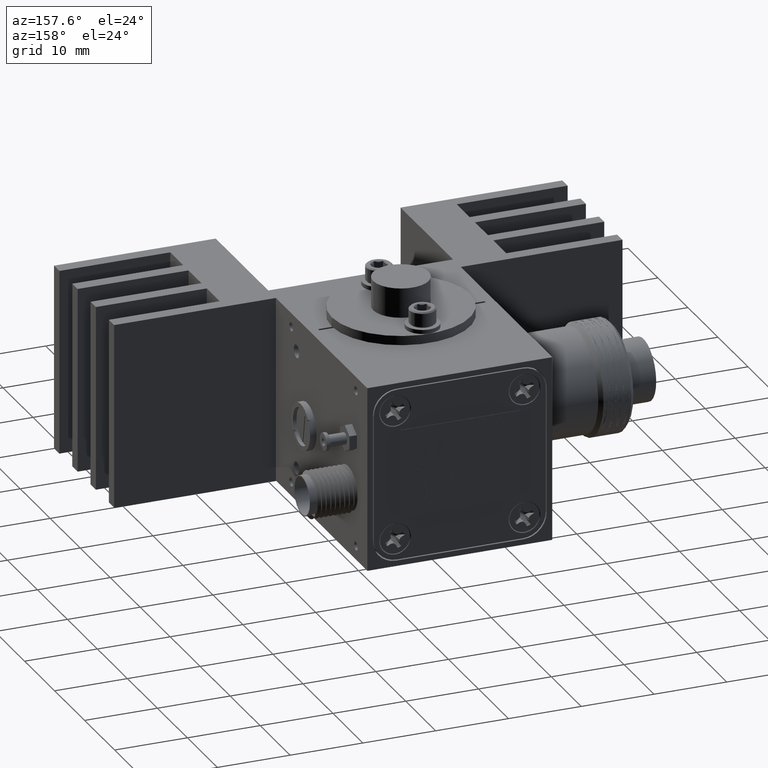
[diagram: clean part render]
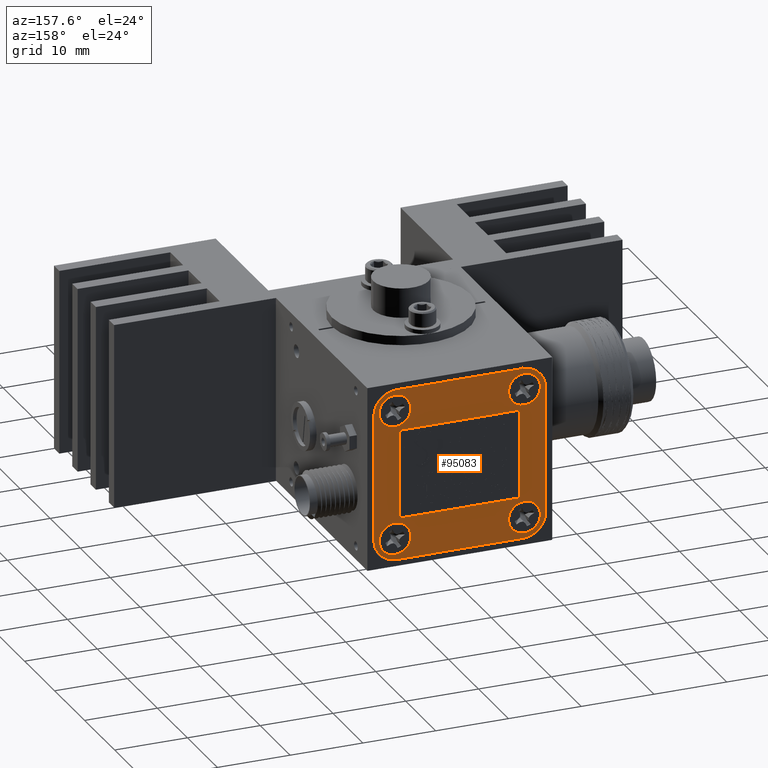
[diagram: same view with one face highlighted and labeled with its STEP entity id]
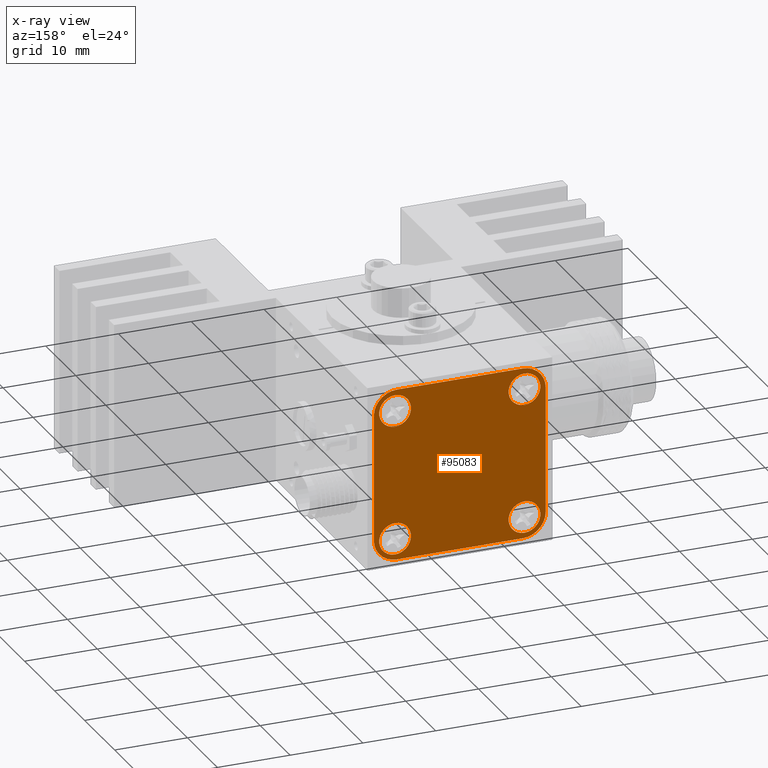
[diagram: x-ray of the same camera — body ghosted, the highlighted face saturated]
A machine part, auxiliary view. The second image highlights one B-rep face of the part: STEP entity #95083.
The next image is the same camera in x-ray: the body ghosted, the highlighted face saturated — about 0% of this face is hidden behind the body in this view.
In plain terms, the highlighted planar face has unit normal (0, 1, 0).
Its self-contained STEP definition (entity closure, byte-faithful):
#1056 = DIRECTION ( 'NONE',  ( -0.0000000000000000000, 1.000000000000000000, -0.0000000000000000000 ) ) ;
#1147 = CARTESIAN_POINT ( 'NONE',  ( -58.08517711743992600, 61.44957720897321700, -7.853335864232247900 ) ) ;
#2898 = CARTESIAN_POINT ( 'NONE',  ( -57.83117711743993500, 61.44957720897321700, 12.84766413576775300 ) ) ;
#3302 = FACE_BOUND ( 'NONE', #73069, .T. ) ;
#3988 = DIRECTION ( 'NONE',  ( 0.0000000000000000000, 1.000000000000000000, 0.0000000000000000000 ) ) ;
#4168 = DIRECTION ( 'NONE',  ( 0.0000000000000000000, 0.0000000000000000000, 1.000000000000000000 ) ) ;
#6086 = VECTOR ( 'NONE', #59791, 1000.000000000000000 ) ;
#8505 = EDGE_CURVE ( 'NONE', #22599, #34956, #102465, .T. ) ;
#8534 = ORIENTED_EDGE ( 'NONE', *, *, #73837, .F. ) ;
#8679 = CARTESIAN_POINT ( 'NONE',  ( -37.38417711743994000, 61.44957720897321700, 9.672664135767748300 ) ) ;
#8856 = EDGE_CURVE ( 'NONE', #91216, #23936, #73966, .T. ) ;
#9264 = CIRCLE ( 'NONE', #89928, 2.184399999999999700 ) ;
#9723 = EDGE_CURVE ( 'NONE', #87747, #75774, #99572, .T. ) ;
#10032 = FACE_OUTER_BOUND ( 'NONE', #32631, .T. ) ;
#10154 = ORIENTED_EDGE ( 'NONE', *, *, #103052, .F. ) ;
#10581 = DIRECTION ( 'NONE',  ( -0.0000000000000000000, -0.0000000000000000000, 1.000000000000000000 ) ) ;
#10900 = CARTESIAN_POINT ( 'NONE',  ( -61.00617711743993300, 61.44957720897321700, -7.599335864232246600 ) ) ;
#12615 = CARTESIAN_POINT ( 'NONE',  ( -58.08517711743992600, 61.44957720897321700, -10.03773586423224800 ) ) ;
#12728 = VERTEX_POINT ( 'NONE', #27236 ) ;
#13377 = ORIENTED_EDGE ( 'NONE', *, *, #82878, .T. ) ;
#13509 = VERTEX_POINT ( 'NONE', #81997 ) ;
#16532 = VECTOR ( 'NONE', #79415, 1000.000000000000000 ) ;
#16614 = CIRCLE ( 'NONE', #50078, 3.174999999999999800 ) ;
#17054 = CIRCLE ( 'NONE', #96171, 3.174999999999999800 ) ;
#17755 = ORIENTED_EDGE ( 'NONE', *, *, #95168, .F. ) ;
#17810 = CARTESIAN_POINT ( 'NONE',  ( -61.00617711743993300, 61.44957720897321700, 12.84766413576775300 ) ) ;
#17997 = DIRECTION ( 'NONE',  ( 0.0000000000000000000, 0.0000000000000000000, 1.000000000000000000 ) ) ;
#18172 = EDGE_CURVE ( 'NONE', #13509, #12728, #17054, .T. ) ;
#18212 = EDGE_CURVE ( 'NONE', #85832, #13509, #61786, .T. ) ;
#19205 = VERTEX_POINT ( 'NONE', #12615 ) ;
#19947 = CIRCLE ( 'NONE', #84902, 3.175000000000000700 ) ;
#22395 = VECTOR ( 'NONE', #10581, 1000.000000000000000 ) ;
#22599 = VERTEX_POINT ( 'NONE', #10900 ) ;
#23696 = CARTESIAN_POINT ( 'NONE',  ( -58.08517711743992600, 61.44957720897321700, 12.11106413576775000 ) ) ;
#23936 = VERTEX_POINT ( 'NONE', #77948 ) ;
#26413 = CARTESIAN_POINT ( 'NONE',  ( -37.38417711743994000, 61.44957720897321700, 12.84766413576774900 ) ) ;
#27236 = CARTESIAN_POINT ( 'NONE',  ( -40.55917711743993700, 61.44957720897321700, -10.77433586423225100 ) ) ;
#27782 = AXIS2_PLACEMENT_3D ( 'NONE', #63150, #3988, #73348 ) ;
#27874 = DIRECTION ( 'NONE',  ( 0.0000000000000000000, 0.0000000000000000000, 1.000000000000000000 ) ) ;
#28463 = CARTESIAN_POINT ( 'NONE',  ( -57.83117711743993500, 61.44957720897321700, -7.599335864232246600 ) ) ;
#28499 = DIRECTION ( 'NONE',  ( 0.0000000000000000000, 0.0000000000000000000, 1.000000000000000000 ) ) ;
#29221 = DIRECTION ( 'NONE',  ( 0.0000000000000000000, 1.000000000000000000, 0.0000000000000000000 ) ) ;
#29928 = ORIENTED_EDGE ( 'NONE', *, *, #55659, .T. ) ;
#30542 = AXIS2_PLACEMENT_3D ( 'NONE', #1147, #36397, #103935 ) ;
#31523 = ORIENTED_EDGE ( 'NONE', *, *, #18172, .T. ) ;
#32631 = EDGE_LOOP ( 'NONE', ( #63592, #13377, #105329, #107828, #61259, #29928, #32868, #31523 ) ) ;
#32868 = ORIENTED_EDGE ( 'NONE', *, *, #18212, .T. ) ;
#33107 = EDGE_LOOP ( 'NONE', ( #43221, #10154 ) ) ;
#34510 = AXIS2_PLACEMENT_3D ( 'NONE', #78696, #35839, #27874 ) ;
#34920 = VERTEX_POINT ( 'NONE', #55931 ) ;
#34956 = VERTEX_POINT ( 'NONE', #71886 ) ;
#35839 = DIRECTION ( 'NONE',  ( -0.0000000000000000000, 1.000000000000000000, -0.0000000000000000000 ) ) ;
#36195 = CARTESIAN_POINT ( 'NONE',  ( -40.55917711743993700, 61.44957720897321700, -7.599335864232250200 ) ) ;
#36397 = DIRECTION ( 'NONE',  ( -0.0000000000000000000, 1.000000000000000000, -0.0000000000000000000 ) ) ;
#36774 = PLANE ( 'NONE',  #63924 ) ;
#37227 = CARTESIAN_POINT ( 'NONE',  ( -40.30517711743993900, 61.44957720897321700, -7.853335864232251500 ) ) ;
#37312 = DIRECTION ( 'NONE',  ( 0.0000000000000000000, 0.0000000000000000000, 1.000000000000000000 ) ) ;
#37671 = DIRECTION ( 'NONE',  ( 0.0000000000000000000, 0.0000000000000000000, -1.000000000000000000 ) ) ;
#37931 = CIRCLE ( 'NONE', #34510, 2.184399999999999700 ) ;
#39857 = CIRCLE ( 'NONE', #54919, 2.184399999999999700 ) ;
#40168 = EDGE_LOOP ( 'NONE', ( #17755, #91004 ) ) ;
#40203 = ORIENTED_EDGE ( 'NONE', *, *, #65530, .F. ) ;
#41206 = CIRCLE ( 'NONE', #110367, 2.184399999999999700 ) ;
#41469 = CIRCLE ( 'NONE', #55319, 2.184399999999999700 ) ;
#42506 = CIRCLE ( 'NONE', #27782, 3.175000000000000700 ) ;
#42707 = DIRECTION ( 'NONE',  ( -0.0000000000000000000, 1.000000000000000000, -0.0000000000000000000 ) ) ;
#42890 = CARTESIAN_POINT ( 'NONE',  ( -40.30517711743993900, 61.44957720897321700, 7.742264135767746900 ) ) ;
#43221 = ORIENTED_EDGE ( 'NONE', *, *, #9723, .F. ) ;
#43251 = DIRECTION ( 'NONE',  ( 0.0000000000000000000, 0.0000000000000000000, 1.000000000000000000 ) ) ;
#43351 = CARTESIAN_POINT ( 'NONE',  ( -58.08517711743992600, 61.44957720897321700, -5.668935864232247800 ) ) ;
#44861 = DIRECTION ( 'NONE',  ( -0.0000000000000000000, 1.000000000000000000, -0.0000000000000000000 ) ) ;
#45509 = VECTOR ( 'NONE', #37671, 1000.000000000000000 ) ;
#45921 = VERTEX_POINT ( 'NONE', #74256 ) ;
#46017 = CARTESIAN_POINT ( 'NONE',  ( -37.38417711743994000, 61.44957720897321700, 12.84766413576774900 ) ) ;
#46603 = VERTEX_POINT ( 'NONE', #43351 ) ;
#47193 = EDGE_CURVE ( 'NONE', #34956, #91216, #42506, .T. ) ;
#50078 = AXIS2_PLACEMENT_3D ( 'NONE', #28463, #29221, #4168 ) ;
#51013 = DIRECTION ( 'NONE',  ( -0.0000000000000000000, 1.000000000000000000, -0.0000000000000000000 ) ) ;
#51044 = DIRECTION ( 'NONE',  ( 0.0000000000000000000, 0.0000000000000000000, 1.000000000000000000 ) ) ;
#54149 = EDGE_CURVE ( 'NONE', #45921, #34920, #9264, .T. ) ;
#54219 = CARTESIAN_POINT ( 'NONE',  ( -49.19517711743993300, 61.44957720897321700, 1.036664135767750800 ) ) ;
#54919 = AXIS2_PLACEMENT_3D ( 'NONE', #97532, #72088, #28499 ) ;
#54954 = FACE_BOUND ( 'NONE', #40168, .T. ) ;
#55319 = AXIS2_PLACEMENT_3D ( 'NONE', #96283, #1056, #62873 ) ;
#55642 = CARTESIAN_POINT ( 'NONE',  ( -57.83117711743993500, 61.44957720897321700, -10.77433586423224700 ) ) ;
#55659 = EDGE_CURVE ( 'NONE', #23936, #85832, #19947, .T. ) ;
#55931 = CARTESIAN_POINT ( 'NONE',  ( -40.30517711743993900, 61.44957720897321700, -10.03773586423225200 ) ) ;
#56990 = VERTEX_POINT ( 'NONE', #93917 ) ;
#59777 = DIRECTION ( 'NONE',  ( 0.0000000000000000000, 0.0000000000000000000, 1.000000000000000000 ) ) ;
#59791 = DIRECTION ( 'NONE',  ( 1.000000000000000000, -0.0000000000000000000, -1.468735480464657500E-016 ) ) ;
#60723 = EDGE_CURVE ( 'NONE', #12728, #73547, #99252, .T. ) ;
#61259 = ORIENTED_EDGE ( 'NONE', *, *, #8856, .T. ) ;
#61571 = ORIENTED_EDGE ( 'NONE', *, *, #109876, .F. ) ;
#61620 = CARTESIAN_POINT ( 'NONE',  ( -58.08517711743992600, 61.44957720897321700, 9.926664135767749600 ) ) ;
#61786 = LINE ( 'NONE', #46017, #45509 ) ;
#62873 = DIRECTION ( 'NONE',  ( 0.0000000000000000000, 0.0000000000000000000, 1.000000000000000000 ) ) ;
#62949 = DIRECTION ( 'NONE',  ( 0.0000000000000000000, 1.000000000000000000, 0.0000000000000000000 ) ) ;
#63150 = CARTESIAN_POINT ( 'NONE',  ( -57.83117711743993500, 61.44957720897321700, 9.672664135767751900 ) ) ;
#63592 = ORIENTED_EDGE ( 'NONE', *, *, #60723, .T. ) ;
#63924 = AXIS2_PLACEMENT_3D ( 'NONE', #54219, #62949, #89149 ) ;
#65148 = AXIS2_PLACEMENT_3D ( 'NONE', #61620, #44861, #17997 ) ;
#65530 = EDGE_CURVE ( 'NONE', #96539, #56990, #102657, .T. ) ;
#71173 = CIRCLE ( 'NONE', #30542, 2.184399999999999700 ) ;
#71886 = CARTESIAN_POINT ( 'NONE',  ( -61.00617711743993300, 61.44957720897321700, 9.672664135767751900 ) ) ;
#72088 = DIRECTION ( 'NONE',  ( -0.0000000000000000000, 1.000000000000000000, -0.0000000000000000000 ) ) ;
#72176 = CARTESIAN_POINT ( 'NONE',  ( -37.38417711743994000, 61.44957720897321700, -10.77433586423225100 ) ) ;
#72208 = DIRECTION ( 'NONE',  ( 0.0000000000000000000, 1.000000000000000000, 0.0000000000000000000 ) ) ;
#73069 = EDGE_LOOP ( 'NONE', ( #82623, #8534 ) ) ;
#73348 = DIRECTION ( 'NONE',  ( 0.0000000000000000000, 0.0000000000000000000, 1.000000000000000000 ) ) ;
#73547 = VERTEX_POINT ( 'NONE', #55642 ) ;
#73837 = EDGE_CURVE ( 'NONE', #34920, #45921, #37931, .T. ) ;
#73966 = LINE ( 'NONE', #26413, #6086 ) ;
#74256 = CARTESIAN_POINT ( 'NONE',  ( -40.30517711743993900, 61.44957720897321700, -5.668935864232251400 ) ) ;
#75774 = VERTEX_POINT ( 'NONE', #42890 ) ;
#76865 = AXIS2_PLACEMENT_3D ( 'NONE', #102981, #51013, #59777 ) ;
#77948 = CARTESIAN_POINT ( 'NONE',  ( -40.55917711743993700, 61.44957720897321700, 12.84766413576774900 ) ) ;
#78696 = CARTESIAN_POINT ( 'NONE',  ( -40.30517711743993900, 61.44957720897321700, -7.853335864232251500 ) ) ;
#79415 = DIRECTION ( 'NONE',  ( -1.000000000000000000, 0.0000000000000000000, 1.468735480464657500E-016 ) ) ;
#80205 = CARTESIAN_POINT ( 'NONE',  ( -40.55917711743993700, 61.44957720897321700, 9.672664135767748300 ) ) ;
#80596 = DIRECTION ( 'NONE',  ( 0.0000000000000000000, 1.000000000000000000, 0.0000000000000000000 ) ) ;
#80691 = FACE_BOUND ( 'NONE', #33107, .T. ) ;
#81997 = CARTESIAN_POINT ( 'NONE',  ( -37.38417711743994000, 61.44957720897321700, -7.599335864232250200 ) ) ;
#82623 = ORIENTED_EDGE ( 'NONE', *, *, #54149, .F. ) ;
#82878 = EDGE_CURVE ( 'NONE', #73547, #22599, #16614, .T. ) ;
#84902 = AXIS2_PLACEMENT_3D ( 'NONE', #80205, #80596, #37312 ) ;
#85832 = VERTEX_POINT ( 'NONE', #8679 ) ;
#87747 = VERTEX_POINT ( 'NONE', #95773 ) ;
#89149 = DIRECTION ( 'NONE',  ( 0.0000000000000000000, -0.0000000000000000000, 1.000000000000000000 ) ) ;
#89928 = AXIS2_PLACEMENT_3D ( 'NONE', #37227, #98308, #43251 ) ;
#90173 = FACE_BOUND ( 'NONE', #112145, .T. ) ;
#91004 = ORIENTED_EDGE ( 'NONE', *, *, #94858, .F. ) ;
#91216 = VERTEX_POINT ( 'NONE', #2898 ) ;
#93917 = CARTESIAN_POINT ( 'NONE',  ( -58.08517711743992600, 61.44957720897321700, 7.742264135767749500 ) ) ;
#94858 = EDGE_CURVE ( 'NONE', #19205, #46603, #71173, .T. ) ;
#95083 = ADVANCED_FACE ( 'NONE', ( #54954, #80691, #3302, #90173, #10032 ), #36774, .T. ) ;
#95168 = EDGE_CURVE ( 'NONE', #46603, #19205, #41206, .T. ) ;
#95773 = CARTESIAN_POINT ( 'NONE',  ( -40.30517711743993900, 61.44957720897321700, 12.11106413576774600 ) ) ;
#96171 = AXIS2_PLACEMENT_3D ( 'NONE', #36195, #72208, #97656 ) ;
#96283 = CARTESIAN_POINT ( 'NONE',  ( -58.08517711743992600, 61.44957720897321700, 9.926664135767749600 ) ) ;
#96539 = VERTEX_POINT ( 'NONE', #23696 ) ;
#97532 = CARTESIAN_POINT ( 'NONE',  ( -40.30517711743993900, 61.44957720897321700, 9.926664135767746100 ) ) ;
#97656 = DIRECTION ( 'NONE',  ( 0.0000000000000000000, 0.0000000000000000000, 1.000000000000000000 ) ) ;
#98308 = DIRECTION ( 'NONE',  ( -0.0000000000000000000, 1.000000000000000000, -0.0000000000000000000 ) ) ;
#99252 = LINE ( 'NONE', #72176, #16532 ) ;
#99572 = CIRCLE ( 'NONE', #76865, 2.184399999999999700 ) ;
#102465 = LINE ( 'NONE', #17810, #22395 ) ;
#102657 = CIRCLE ( 'NONE', #65148, 2.184399999999999700 ) ;
#102981 = CARTESIAN_POINT ( 'NONE',  ( -40.30517711743993900, 61.44957720897321700, 9.926664135767746100 ) ) ;
#103021 = CARTESIAN_POINT ( 'NONE',  ( -58.08517711743992600, 61.44957720897321700, -7.853335864232247900 ) ) ;
#103052 = EDGE_CURVE ( 'NONE', #75774, #87747, #39857, .T. ) ;
#103935 = DIRECTION ( 'NONE',  ( 0.0000000000000000000, 0.0000000000000000000, 1.000000000000000000 ) ) ;
#105329 = ORIENTED_EDGE ( 'NONE', *, *, #8505, .T. ) ;
#107828 = ORIENTED_EDGE ( 'NONE', *, *, #47193, .T. ) ;
#109876 = EDGE_CURVE ( 'NONE', #56990, #96539, #41469, .T. ) ;
#110367 = AXIS2_PLACEMENT_3D ( 'NONE', #103021, #42707, #51044 ) ;
#112145 = EDGE_LOOP ( 'NONE', ( #40203, #61571 ) ) ;